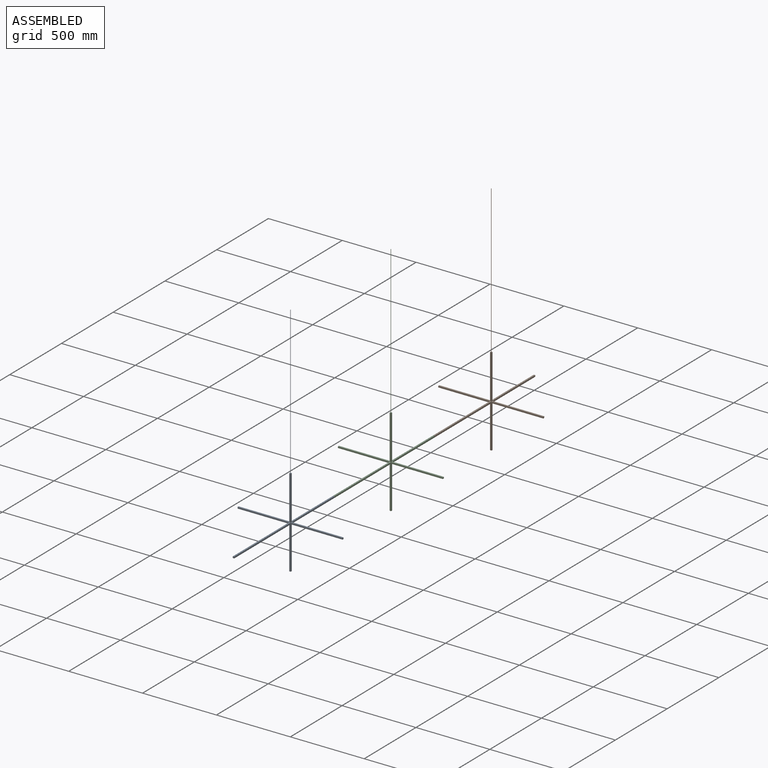
[diagram: assembled view]
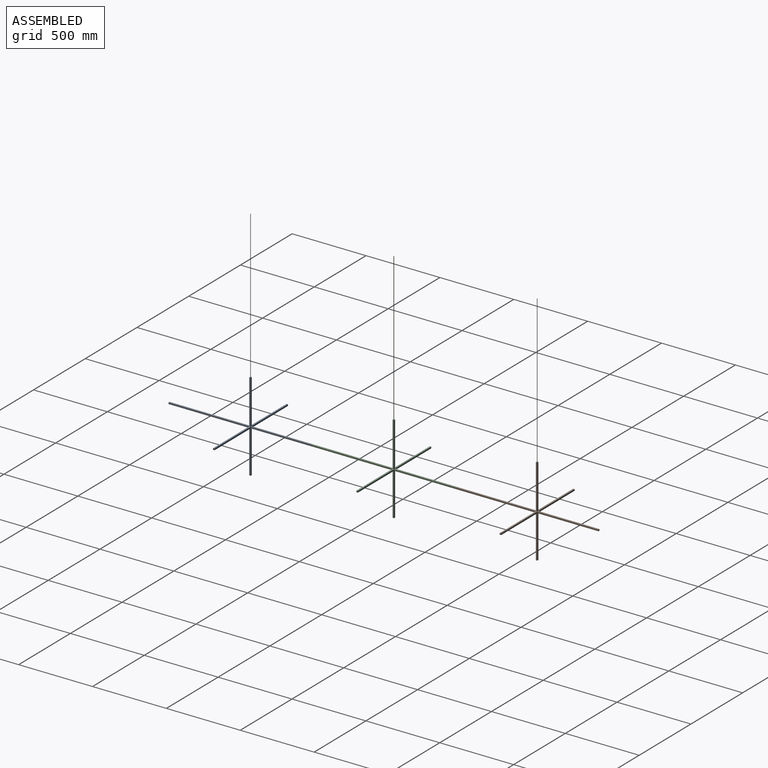
[diagram: assembled view, second angle]
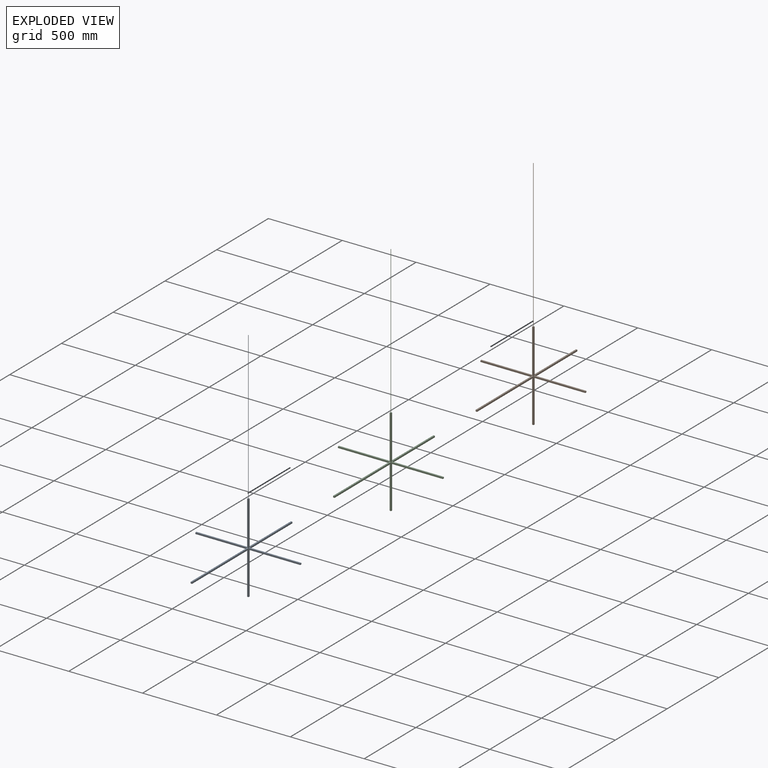
[diagram: exploded view]
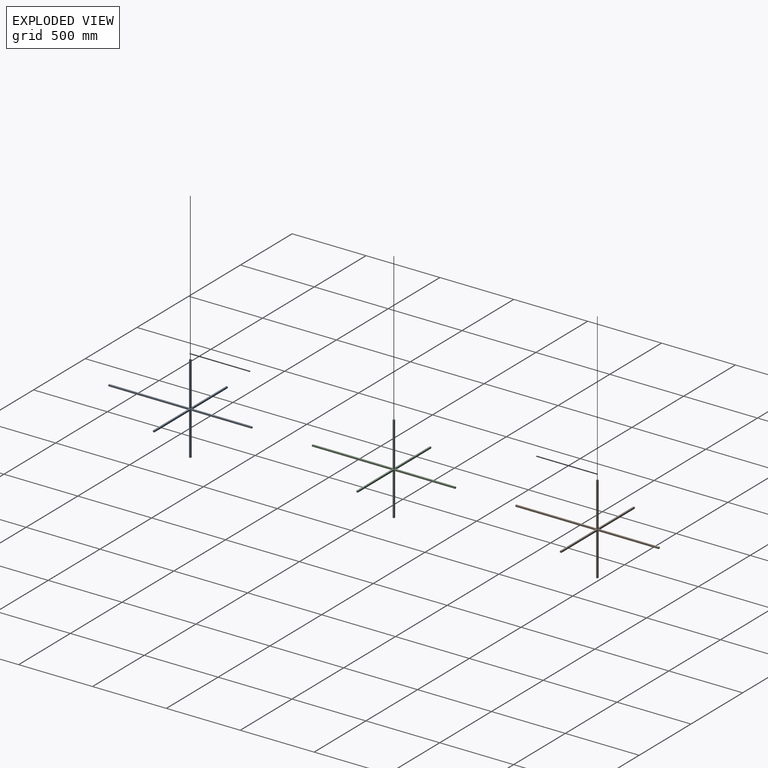
[diagram: exploded view, second angle]
ASSEMBLY  parts=3 mates=2
PART A: 34 faces, bbox 710x970x1600 mm
  f0: plane 546.53x10mm, normal (1,0,0), area 5465.3mm2, adj f6,f7,f12,f26
  f1: plane 290x10mm, normal (1,0,0), area 2900mm2, adj f14,f15,f16,f27
  f2: plane 300x10mm, normal (1,0,0), area 2996.9mm2, adj f17,f18,f19,f25,f33
  f3: plane 546.53x10mm, normal (-1,0,0), area 5465.3mm2, adj f6,f7,f12,f23
  f4: plane 290x10mm, normal (-1,0,0), area 2900mm2, adj f14,f15,f16,f22
  f5: plane 300x10mm, normal (-1,0,0), area 2996.9mm2, adj f17,f18,f19,f24,f33
  f6: plane 546.53x10mm, normal (0,0,1), area 5465.3mm2, adj f0,f3,f12,f18
  f7: plane 546.53x10mm, normal (0,0,-1), area 5465.3mm2, adj f0,f3,f12,f16
  f8: plane 413.47x10mm, normal (1,0,0), area 4134.7mm2, adj f9,f11,f13,f28
  f9: plane 413.47x10mm, normal (0,0,1), area 4134.7mm2, adj f8,f10,f13,f17
  f10: plane 413.47x10mm, normal (-1,0,0), area 4134.7mm2, adj f9,f11,f13,f21
  f11: plane 413.47x10mm, normal (0,0,-1), area 4134.7mm2, adj f8,f10,f13,f15
  f12: plane 10x10mm, normal (0,-1,0), area 100mm2, adj f0,f3,f6,f7
  f13: plane 10x10mm, normal (0,1,0), area 100mm2, adj f8,f9,f10,f11
  f14: plane 10x10mm, normal (0,0,-1), area 100mm2, adj f1,f4,f15,f16
  f15: plane 290x10mm, normal (0,1,0), area 2900mm2, adj f1,f4,f11,f14
  f16: plane 290x10mm, normal (0,-1,0), area 2900mm2, adj f1,f4,f7,f14
  f17: plane 300x10mm, normal (0,1,0), area 2996.9mm2, adj f2,f5,f9,f19,f32
  f18: plane 300x10mm, normal (0,-1,0), area 2996.9mm2, adj f2,f5,f6,f19,f32
  f19: plane 10x10mm, normal (0,0,1), area 92.9mm2, adj f2,f5,f17,f18,f30
  f20: plane 10x10mm, normal (-1,0,0), area 100mm2, adj f21,f22,f23,f24
  f21: plane 350x10mm, normal (0,1,0), area 3500mm2, adj f10,f20,f22,f24
  f22: plane 350x10mm, normal (0,0,-1), area 3500mm2, adj f4,f20,f21,f23
  f23: plane 350x10mm, normal (0,-1,0), area 3500mm2, adj f3,f20,f22,f24
  f24: plane 350x10mm, normal (0,0,1), area 3500mm2, adj f5,f20,f21,f23
  f25: plane 350x10mm, normal (0,0,1), area 3500mm2, adj f2,f26,f28,f29
  f26: plane 350x10mm, normal (0,-1,0), area 3500mm2, adj f0,f25,f27,f29
  f27: plane 350x10mm, normal (0,0,-1), area 3500mm2, adj f1,f26,f28,f29
  f28: plane 350x10mm, normal (0,1,0), area 3500mm2, adj f8,f25,f27,f29
  f29: plane 10x10mm, normal (1,0,0), area 100mm2, adj f25,f26,f27,f28
  f30: cylinder r=1.5mm len=1000mm, axis (0,0,-1), area 9424.8mm2, adj f19,f31
  f31: plane 3x3mm, normal (0,0,1), area 7.1mm2, adj f30
  f32: cylinder r=1mm len=10mm, axis (0,-1,0), area 62.8mm2, adj f17,f18
  f33: cylinder r=1mm len=10mm, axis (1,0,0), area 62.8mm2, adj f2,f5
PART B: same geometry as A
PART C: same geometry as A
PLACE A t=(-181.01,109.65,-199.32)mm
PLACE B t=(-181.01,2049.65,-199.32)mm
PLACE C t=(-181.01,1079.65,-199.32)mm
MATE fastened C.f13 <-> B.f12  axis (0,1,0) through (-182.75,1079.65,-201.43)mm
MATE fastened C.f12 <-> A.f13  axis (0,-1,0) through (-182.75,109.65,-201.43)mm
